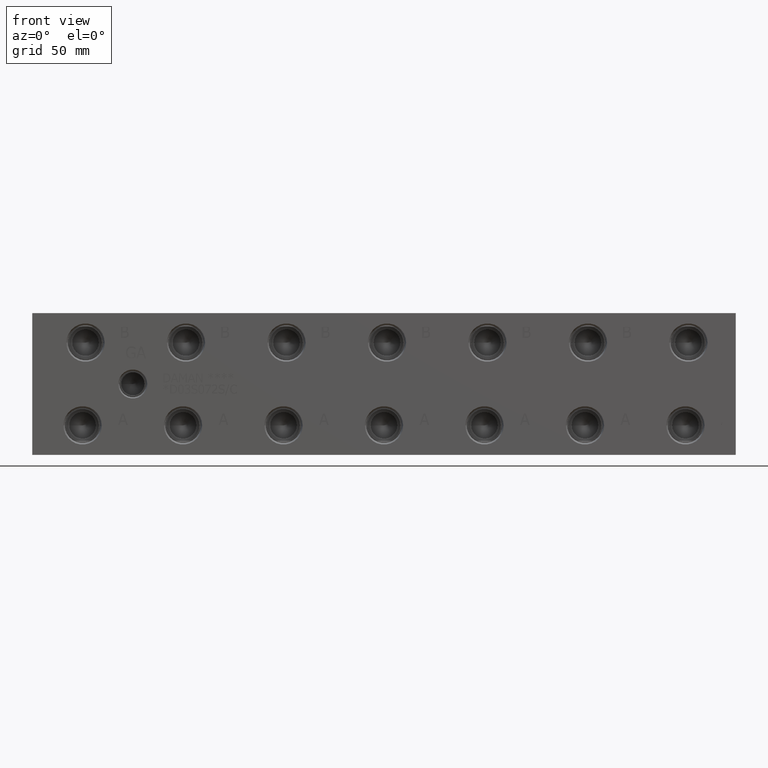
[diagram: clean part render]
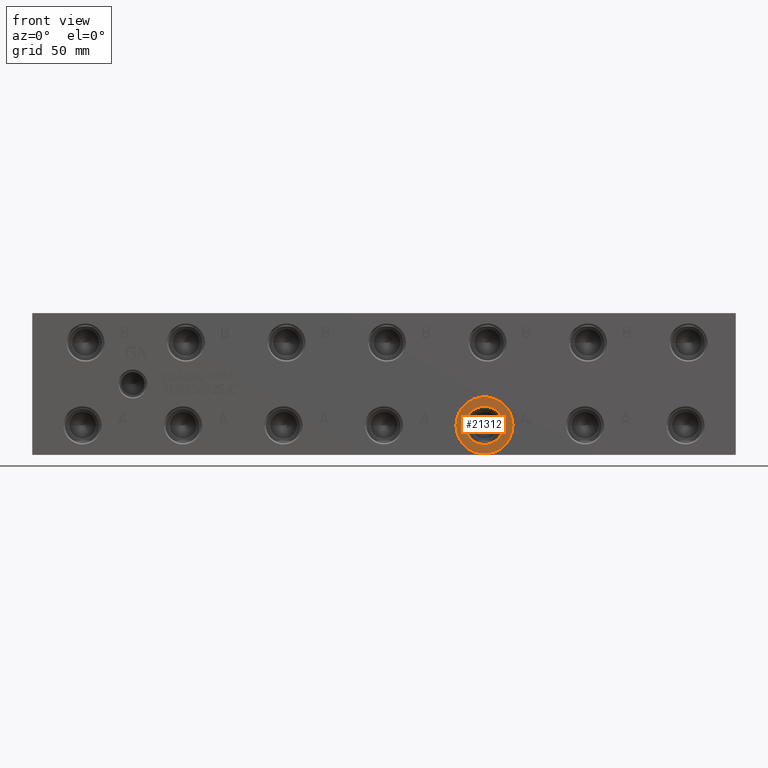
[diagram: same view with one face highlighted and labeled with its STEP entity id]
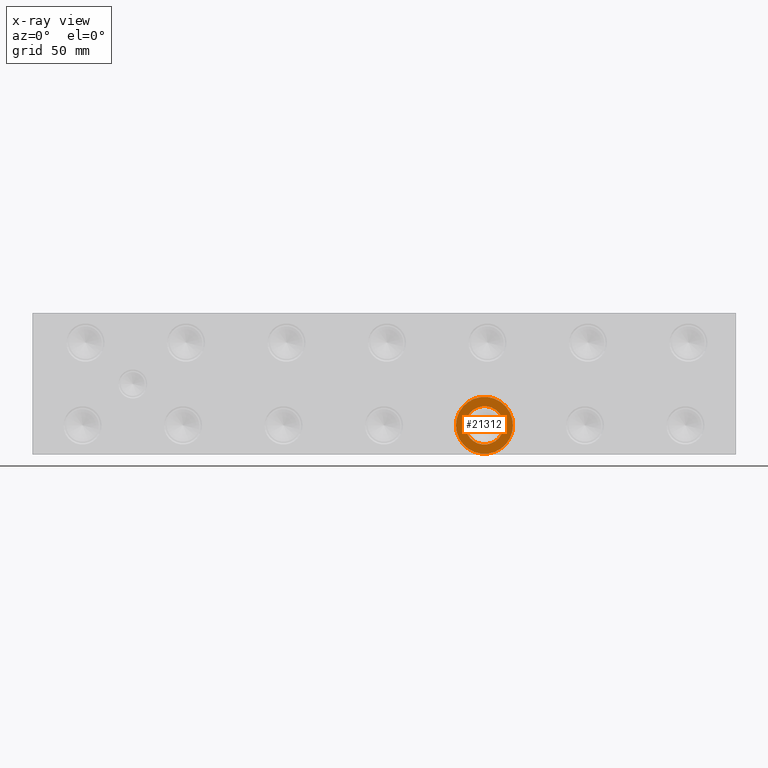
[diagram: x-ray of the same camera — body ghosted, the highlighted face saturated]
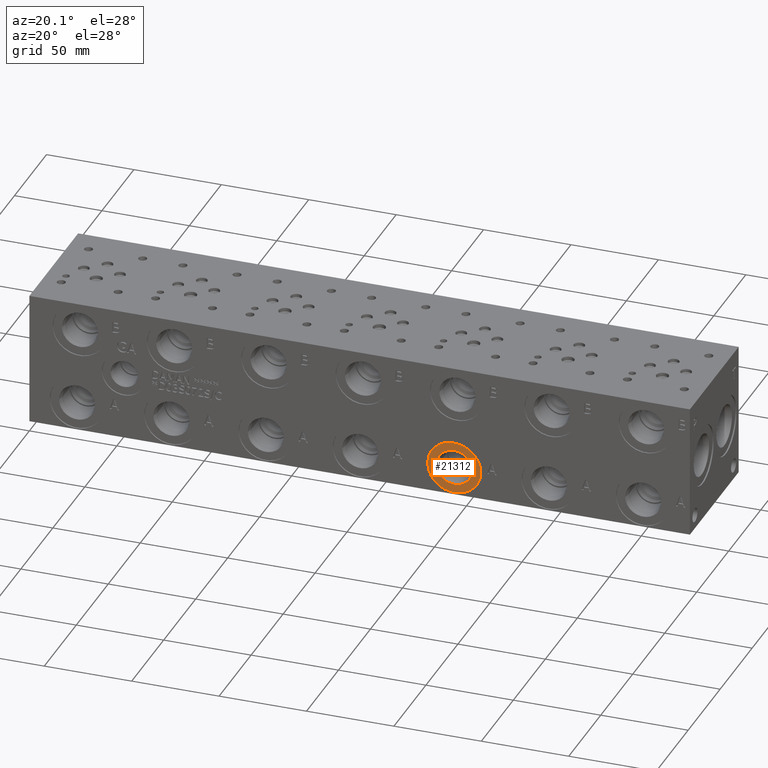
[diagram: same view with one face highlighted and labeled with its STEP entity id]
A machine part, front view. The second image highlights one B-rep face of the part: STEP entity #21312.
The next image is the same camera in x-ray: the body ghosted, the highlighted face saturated — about 0% of this face is hidden behind the body in this view.
A second angle (auxiliary view) of the same face is appended — the face is thin or edge-on in the first view.
In plain terms, the highlighted planar face has unit normal (0, 1, 0).
Its self-contained STEP definition (entity closure, byte-faithful):
#821=CIRCLE('',#22662,15.3162);
#822=CIRCLE('',#22663,15.3162);
#823=CIRCLE('',#22665,10.2997);
#824=CIRCLE('',#22666,10.2997);
#1251=FACE_BOUND('',#4266,.T.);
#3008=FACE_OUTER_BOUND('',#4265,.T.);
#4265=EDGE_LOOP('',(#18063,#18064));
#4266=EDGE_LOOP('',(#18065,#18066));
#9866=VERTEX_POINT('',#36633);
#9867=VERTEX_POINT('',#36635);
#9868=VERTEX_POINT('',#36639);
#9869=VERTEX_POINT('',#36640);
#12721=EDGE_CURVE('',#9866,#9867,#821,.T.);
#12722=EDGE_CURVE('',#9867,#9866,#822,.T.);
#12723=EDGE_CURVE('',#9868,#9869,#823,.T.);
#12724=EDGE_CURVE('',#9869,#9868,#824,.T.);
#18063=ORIENTED_EDGE('',*,*,#12722,.F.);
#18064=ORIENTED_EDGE('',*,*,#12721,.F.);
#18065=ORIENTED_EDGE('',*,*,#12723,.T.);
#18066=ORIENTED_EDGE('',*,*,#12724,.T.);
#19683=PLANE('',#22664);
#21312=ADVANCED_FACE('',(#3008,#1251),#19683,.F.);
#22662=AXIS2_PLACEMENT_3D('',#36636,#27012,#27013);
#22663=AXIS2_PLACEMENT_3D('',#36637,#27014,#27015);
#22664=AXIS2_PLACEMENT_3D('',#36638,#27016,#27017);
#22665=AXIS2_PLACEMENT_3D('',#36641,#27018,#27019);
#22666=AXIS2_PLACEMENT_3D('',#36642,#27020,#27021);
#27012=DIRECTION('center_axis',(0.,1.,0.));
#27013=DIRECTION('ref_axis',(1.,0.,0.));
#27014=DIRECTION('center_axis',(0.,1.,0.));
#27015=DIRECTION('ref_axis',(1.,0.,0.));
#27016=DIRECTION('center_axis',(0.,1.,0.));
#27017=DIRECTION('ref_axis',(0.,0.,1.));
#27018=DIRECTION('center_axis',(0.,1.,0.));
#27019=DIRECTION('ref_axis',(1.,0.,0.));
#27020=DIRECTION('center_axis',(0.,1.,0.));
#27021=DIRECTION('ref_axis',(1.,0.,0.));
#36633=CARTESIAN_POINT('',(227.5586,0.7874,15.875));
#36635=CARTESIAN_POINT('',(258.191,0.7874,15.875));
#36636=CARTESIAN_POINT('Origin',(242.8748,0.7874,15.875));
#36637=CARTESIAN_POINT('Origin',(242.8748,0.7874,15.875));
#36638=CARTESIAN_POINT('Origin',(253.1745,0.7874,15.875));
#36639=CARTESIAN_POINT('',(253.1745,0.7874,15.875));
#36640=CARTESIAN_POINT('',(232.5751,0.787399999999999,15.875));
#36641=CARTESIAN_POINT('Origin',(242.8748,0.7874,15.875));
#36642=CARTESIAN_POINT('Origin',(242.8748,0.7874,15.875));